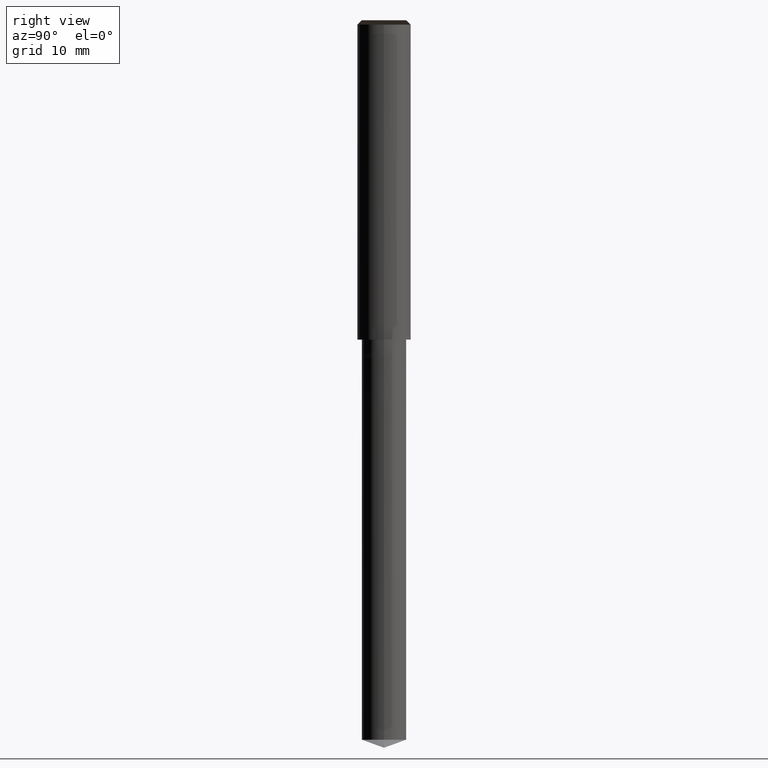
[diagram: clean part render]
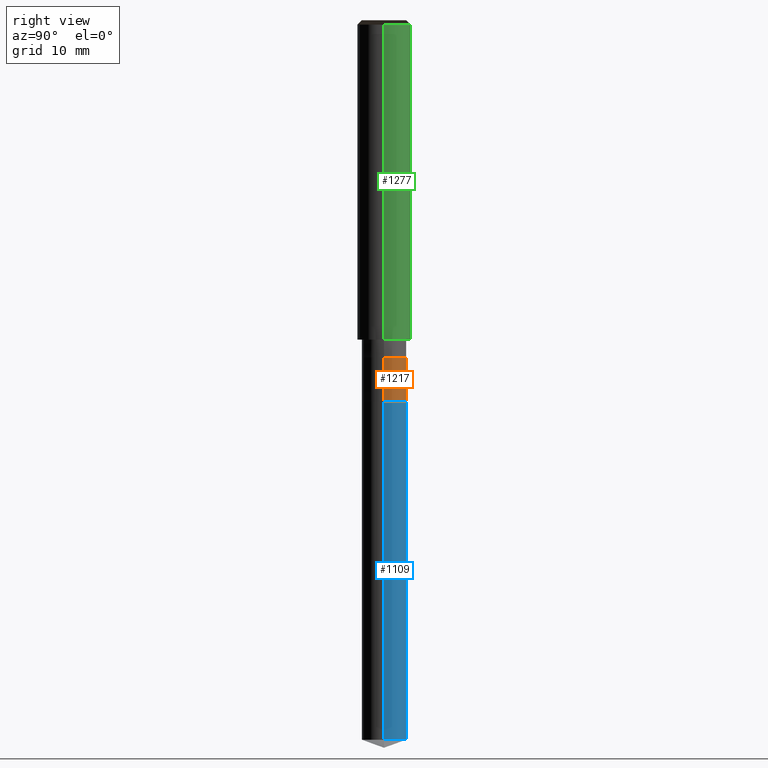
[diagram: same view with three faces highlighted in distinct colors, each labeled with its STEP entity id]
A machine part, right view with three faces highlighted in distinct colors.
Their STEP definitions:

[orange] entity #1217 — the highlighted face is a freeform B-spline surface patch.
#1016=CARTESIAN_POINT('',(2.5,0.0,-7.0));
#1017=CARTESIAN_POINT('',(2.5,2.5,-7.0));
#1018=CARTESIAN_POINT('',(0.0,2.5,-7.0));
#1019=CARTESIAN_POINT('',(-2.5,2.5,-7.0));
#1020=CARTESIAN_POINT('',(-2.5,0.0,-7.0));
#1028=CARTESIAN_POINT('',(2.5,0.0,-2.0));
#1029=CARTESIAN_POINT('',(2.5,2.5,-2.0));
#1030=CARTESIAN_POINT('',(0.0,2.5,-2.0));
#1031=CARTESIAN_POINT('',(-2.5,2.5,-2.0));
#1032=CARTESIAN_POINT('',(-2.5,0.0,-2.0));
#1198=(
BOUNDED_SURFACE()
B_SPLINE_SURFACE(1,2,(
(#1016,#1017,#1018,#1019,#1020),
(#1028,#1029,#1030,#1031,#1032)
), .UNSPECIFIED.,.F.,.F.,.F.)
B_SPLINE_SURFACE_WITH_KNOTS((2,2),(3,2,3),(
0.0,1.0),(
0.0,0.5,1.0), .UNSPECIFIED.)
GEOMETRIC_REPRESENTATION_ITEM()
RATIONAL_B_SPLINE_SURFACE(((1.0,0.707106781187,1.0,0.707106781187,1.0),
(1.0,0.707106781187,1.0,0.707106781187,1.0)
))
REPRESENTATION_ITEM('')
SURFACE()
);
#1199=(
BOUNDED_CURVE()
B_SPLINE_CURVE(2,(#1020,#1019,#1018,#1017,#1016),.UNSPECIFIED.,.F.,.F.)
B_SPLINE_CURVE_WITH_KNOTS((3,2,3),
(0.0,0.5,1.0),.UNSPECIFIED.)
CURVE()
GEOMETRIC_REPRESENTATION_ITEM()
RATIONAL_B_SPLINE_CURVE((1.0,0.707106781187,1.0,0.707106781187,1.0))
REPRESENTATION_ITEM('')
);
#1200=(
BOUNDED_CURVE()
B_SPLINE_CURVE(1,(#1016,#1028),.UNSPECIFIED.,.F.,.F.)
B_SPLINE_CURVE_WITH_KNOTS((2,2),
(0.0,1.0),.UNSPECIFIED.)
CURVE()
GEOMETRIC_REPRESENTATION_ITEM()
RATIONAL_B_SPLINE_CURVE((1.0,1.0))
REPRESENTATION_ITEM('')
);
#1201=(
BOUNDED_CURVE()
B_SPLINE_CURVE(2,(#1028,#1029,#1030,#1031,#1032),.UNSPECIFIED.,.F.,.F.)
B_SPLINE_CURVE_WITH_KNOTS((3,2,3),
(0.0,0.5,1.0),.UNSPECIFIED.)
CURVE()
GEOMETRIC_REPRESENTATION_ITEM()
RATIONAL_B_SPLINE_CURVE((1.0,0.707106781187,1.0,0.707106781187,1.0))
REPRESENTATION_ITEM('')
);
#1202=(
BOUNDED_CURVE()
B_SPLINE_CURVE(1,(#1032,#1020),.UNSPECIFIED.,.F.,.F.)
B_SPLINE_CURVE_WITH_KNOTS((2,2),
(0.0,1.0),.UNSPECIFIED.)
CURVE()
GEOMETRIC_REPRESENTATION_ITEM()
RATIONAL_B_SPLINE_CURVE((1.0,1.0))
REPRESENTATION_ITEM('')
);
#1203=VERTEX_POINT('',#1016);
#1204=VERTEX_POINT('',#1020);
#1205=VERTEX_POINT('',#1028);
#1206=VERTEX_POINT('',#1032);
#1207=EDGE_CURVE('',#1204,#1203,#1199,.T.);
#1208=EDGE_CURVE('',#1203,#1205,#1200,.T.);
#1209=EDGE_CURVE('',#1205,#1206,#1201,.T.);
#1210=EDGE_CURVE('',#1206,#1204,#1202,.T.);
#1211=ORIENTED_EDGE('',*,*,#1207,.T.);
#1212=ORIENTED_EDGE('',*,*,#1208,.T.);
#1213=ORIENTED_EDGE('',*,*,#1209,.T.);
#1214=ORIENTED_EDGE('',*,*,#1210,.T.);
#1215=EDGE_LOOP('',(#1211,#1212,#1213,#1214));
#1216=FACE_OUTER_BOUND('',#1215,.T.);
#1217=ADVANCED_FACE('',(#1216),#1198,.T.);

[blue] entity #1109 — the highlighted face is a freeform B-spline surface patch.
#1011=CARTESIAN_POINT('',(2.5,0.0,-45.090074414334));
#1012=CARTESIAN_POINT('',(2.5,2.5,-45.090074414334));
#1013=CARTESIAN_POINT('',(0.0,2.5,-45.090074414334));
#1014=CARTESIAN_POINT('',(-2.5,2.5,-45.090074414334));
#1015=CARTESIAN_POINT('',(-2.5,0.0,-45.090074414334));
#1016=CARTESIAN_POINT('',(2.5,0.0,-7.0));
#1017=CARTESIAN_POINT('',(2.5,2.5,-7.0));
#1018=CARTESIAN_POINT('',(0.0,2.5,-7.0));
#1019=CARTESIAN_POINT('',(-2.5,2.5,-7.0));
#1020=CARTESIAN_POINT('',(-2.5,0.0,-7.0));
#1090=(
BOUNDED_SURFACE()
B_SPLINE_SURFACE(1,2,(
(#1011,#1012,#1013,#1014,#1015),
(#1016,#1017,#1018,#1019,#1020)
), .UNSPECIFIED.,.F.,.F.,.F.)
B_SPLINE_SURFACE_WITH_KNOTS((2,2),(3,2,3),(
0.0,1.0),(
0.0,0.5,1.0), .UNSPECIFIED.)
GEOMETRIC_REPRESENTATION_ITEM()
RATIONAL_B_SPLINE_SURFACE(((1.0,0.707106781187,1.0,0.707106781187,1.0),
(1.0,0.707106781187,1.0,0.707106781187,1.0)
))
REPRESENTATION_ITEM('')
SURFACE()
);
#1091=(
BOUNDED_CURVE()
B_SPLINE_CURVE(2,(#1015,#1014,#1013,#1012,#1011),.UNSPECIFIED.,.F.,.F.)
B_SPLINE_CURVE_WITH_KNOTS((3,2,3),
(0.0,0.5,1.0),.UNSPECIFIED.)
CURVE()
GEOMETRIC_REPRESENTATION_ITEM()
RATIONAL_B_SPLINE_CURVE((1.0,0.707106781187,1.0,0.707106781187,1.0))
REPRESENTATION_ITEM('')
);
#1092=(
BOUNDED_CURVE()
B_SPLINE_CURVE(1,(#1011,#1016),.UNSPECIFIED.,.F.,.F.)
B_SPLINE_CURVE_WITH_KNOTS((2,2),
(0.0,1.0),.UNSPECIFIED.)
CURVE()
GEOMETRIC_REPRESENTATION_ITEM()
RATIONAL_B_SPLINE_CURVE((1.0,1.0))
REPRESENTATION_ITEM('')
);
#1093=(
BOUNDED_CURVE()
B_SPLINE_CURVE(2,(#1016,#1017,#1018,#1019,#1020),.UNSPECIFIED.,.F.,.F.)
B_SPLINE_CURVE_WITH_KNOTS((3,2,3),
(0.0,0.5,1.0),.UNSPECIFIED.)
CURVE()
GEOMETRIC_REPRESENTATION_ITEM()
RATIONAL_B_SPLINE_CURVE((1.0,0.707106781187,1.0,0.707106781187,1.0))
REPRESENTATION_ITEM('')
);
#1094=(
BOUNDED_CURVE()
B_SPLINE_CURVE(1,(#1020,#1015),.UNSPECIFIED.,.F.,.F.)
B_SPLINE_CURVE_WITH_KNOTS((2,2),
(0.0,1.0),.UNSPECIFIED.)
CURVE()
GEOMETRIC_REPRESENTATION_ITEM()
RATIONAL_B_SPLINE_CURVE((1.0,1.0))
REPRESENTATION_ITEM('')
);
#1095=VERTEX_POINT('',#1011);
#1096=VERTEX_POINT('',#1015);
#1097=VERTEX_POINT('',#1016);
#1098=VERTEX_POINT('',#1020);
#1099=EDGE_CURVE('',#1096,#1095,#1091,.T.);
#1100=EDGE_CURVE('',#1095,#1097,#1092,.T.);
#1101=EDGE_CURVE('',#1097,#1098,#1093,.T.);
#1102=EDGE_CURVE('',#1098,#1096,#1094,.T.);
#1103=ORIENTED_EDGE('',*,*,#1099,.T.);
#1104=ORIENTED_EDGE('',*,*,#1100,.T.);
#1105=ORIENTED_EDGE('',*,*,#1101,.T.);
#1106=ORIENTED_EDGE('',*,*,#1102,.T.);
#1107=EDGE_LOOP('',(#1103,#1104,#1105,#1106));
#1108=FACE_OUTER_BOUND('',#1107,.T.);
#1109=ADVANCED_FACE('',(#1108),#1090,.T.);

[green] entity #1277 — the highlighted face is a freeform B-spline surface patch.
#1038=CARTESIAN_POINT('',(3.0,0.0,0.0));
#1039=CARTESIAN_POINT('',(3.0,3.0,0.0));
#1040=CARTESIAN_POINT('',(0.0,3.0,0.0));
#1041=CARTESIAN_POINT('',(-3.0,3.0,0.0));
#1042=CARTESIAN_POINT('',(-3.0,0.0,0.0));
#1043=CARTESIAN_POINT('',(3.0,0.0,35.5));
#1044=CARTESIAN_POINT('',(3.0,3.0,35.5));
#1045=CARTESIAN_POINT('',(0.0,3.0,35.5));
#1046=CARTESIAN_POINT('',(-3.0,3.0,35.5));
#1047=CARTESIAN_POINT('',(-3.0,0.0,35.5));
#1258=(
BOUNDED_SURFACE()
B_SPLINE_SURFACE(1,2,(
(#1038,#1039,#1040,#1041,#1042),
(#1043,#1044,#1045,#1046,#1047)
), .UNSPECIFIED.,.F.,.F.,.F.)
B_SPLINE_SURFACE_WITH_KNOTS((2,2),(3,2,3),(
0.0,1.0),(
0.0,0.5,1.0), .UNSPECIFIED.)
GEOMETRIC_REPRESENTATION_ITEM()
RATIONAL_B_SPLINE_SURFACE(((1.0,0.707106781187,1.0,0.707106781187,1.0),
(1.0,0.707106781187,1.0,0.707106781187,1.0)
))
REPRESENTATION_ITEM('')
SURFACE()
);
#1259=(
BOUNDED_CURVE()
B_SPLINE_CURVE(2,(#1042,#1041,#1040,#1039,#1038),.UNSPECIFIED.,.F.,.F.)
B_SPLINE_CURVE_WITH_KNOTS((3,2,3),
(0.0,0.5,1.0),.UNSPECIFIED.)
CURVE()
GEOMETRIC_REPRESENTATION_ITEM()
RATIONAL_B_SPLINE_CURVE((1.0,0.707106781187,1.0,0.707106781187,1.0))
REPRESENTATION_ITEM('')
);
#1260=(
BOUNDED_CURVE()
B_SPLINE_CURVE(1,(#1038,#1043),.UNSPECIFIED.,.F.,.F.)
B_SPLINE_CURVE_WITH_KNOTS((2,2),
(0.0,1.0),.UNSPECIFIED.)
CURVE()
GEOMETRIC_REPRESENTATION_ITEM()
RATIONAL_B_SPLINE_CURVE((1.0,1.0))
REPRESENTATION_ITEM('')
);
#1261=(
BOUNDED_CURVE()
B_SPLINE_CURVE(2,(#1043,#1044,#1045,#1046,#1047),.UNSPECIFIED.,.F.,.F.)
B_SPLINE_CURVE_WITH_KNOTS((3,2,3),
(0.0,0.5,1.0),.UNSPECIFIED.)
CURVE()
GEOMETRIC_REPRESENTATION_ITEM()
RATIONAL_B_SPLINE_CURVE((1.0,0.707106781187,1.0,0.707106781187,1.0))
REPRESENTATION_ITEM('')
);
#1262=(
BOUNDED_CURVE()
B_SPLINE_CURVE(1,(#1047,#1042),.UNSPECIFIED.,.F.,.F.)
B_SPLINE_CURVE_WITH_KNOTS((2,2),
(0.0,1.0),.UNSPECIFIED.)
CURVE()
GEOMETRIC_REPRESENTATION_ITEM()
RATIONAL_B_SPLINE_CURVE((1.0,1.0))
REPRESENTATION_ITEM('')
);
#1263=VERTEX_POINT('',#1038);
#1264=VERTEX_POINT('',#1042);
#1265=VERTEX_POINT('',#1043);
#1266=VERTEX_POINT('',#1047);
#1267=EDGE_CURVE('',#1264,#1263,#1259,.T.);
#1268=EDGE_CURVE('',#1263,#1265,#1260,.T.);
#1269=EDGE_CURVE('',#1265,#1266,#1261,.T.);
#1270=EDGE_CURVE('',#1266,#1264,#1262,.T.);
#1271=ORIENTED_EDGE('',*,*,#1267,.T.);
#1272=ORIENTED_EDGE('',*,*,#1268,.T.);
#1273=ORIENTED_EDGE('',*,*,#1269,.T.);
#1274=ORIENTED_EDGE('',*,*,#1270,.T.);
#1275=EDGE_LOOP('',(#1271,#1272,#1273,#1274));
#1276=FACE_OUTER_BOUND('',#1275,.T.);
#1277=ADVANCED_FACE('',(#1276),#1258,.T.);